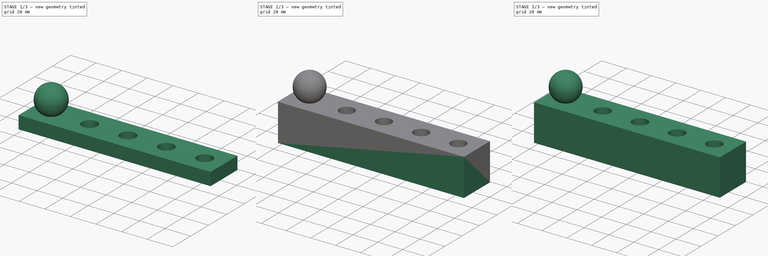
[diagram: build sequence overview — one tinted view per stage of 3, left to right]
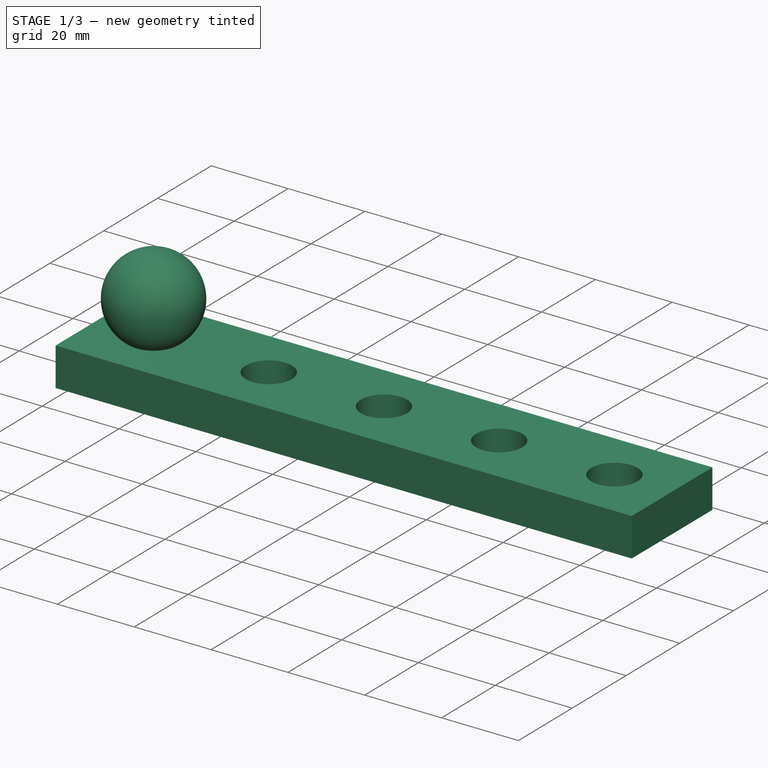
[diagram: stage 1 of 3 — iso view after this stage's code; geometry added in this stage tinted green]
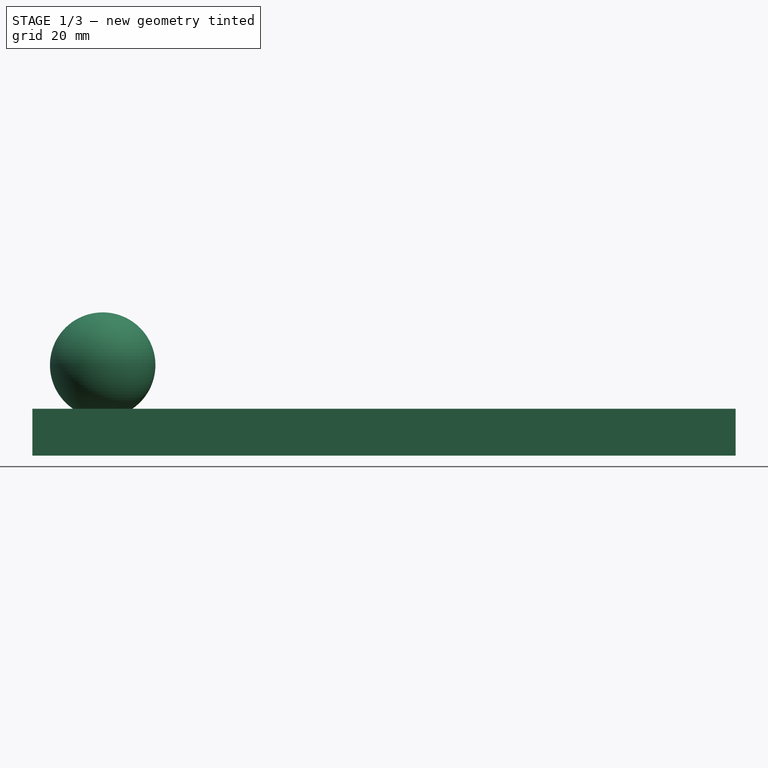
[diagram: stage 1 of 3 — front view after this stage's code; geometry added in this stage tinted green]
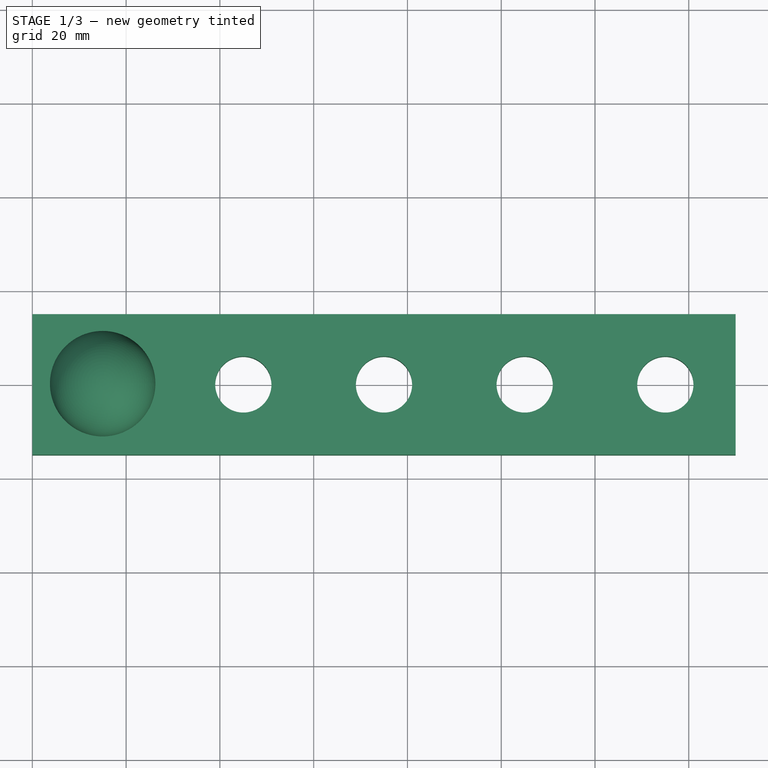
[diagram: stage 1 of 3 — top view after this stage's code; geometry added in this stage tinted green]
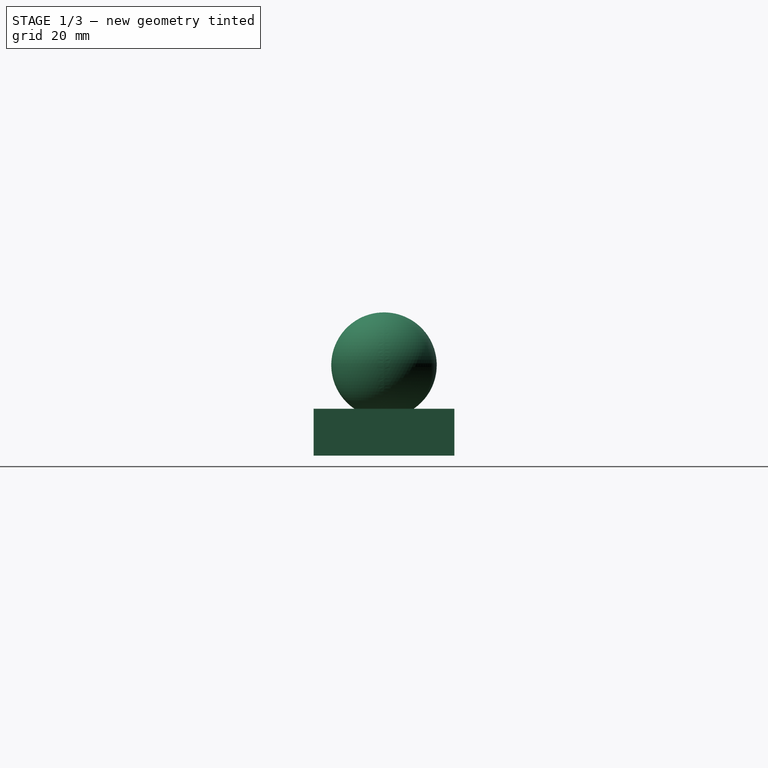
[diagram: stage 1 of 3 — right view after this stage's code; geometry added in this stage tinted green]
FCSTD DOCUMENT  (FreeCAD 2023.131R26244 +5365 (Git))
Label: supportCerise2023
License: Creative Commons Attribution-NoDerivatives
LicenseURL: http://creativecommons.org/licenses/by-nd/4.0/
objects: App::Link×10, App::Part×2, Sketcher::SketchExport×2, PartDesign::Pad×2, PartDesign::Chamfer×2, Part::Sphere×1, PartDesign::Body×1, Sketcher::SketchObject×1
note: 18 computed .brp shape members not serialized (recipe doc carries the construction recipe); baked Part::Feature solids carry a one-line shape summary decoded from their .brp

FEATURE [App::Link] Link  label="DemiSupport02"
  AutoLinkLabel = true
  AutoPlacement = true
  LinkPlacement = pos=(150,-1.78814e-05,0) rot=(0,0,1;0rad)
  LinkedObject = -> Body
  Placement = pos=(150,-1.78814e-05,0) rot=(0,0,1;0rad)
  ShowElement = false
  SyncGroupVisibility = false
  TreeRank = 22
  _LinkVersion = 1
FEATURE [Part::Sphere] Sphere  label="Cerise"
  Angle1 = -90
  Angle2 = 90
  Angle3 = 360
  AttacherType = Attacher::AttachEngine3D
  InvalidShape = false
  Placement = pos=(15,0,19.3) rot=(0,0,1;0rad)
  Radius = 11.25
  TreeRank = 33
  ValidateShape = true
FEATURE [App::Link] Link001  label="Link001(Cerise)"
  AutoLinkLabel = true
  AutoPlacement = true
  LinkPlacement = pos=(45,0,19.3) rot=(0,0,1;0rad)
  LinkedObject = -> Sphere
  Placement = pos=(45,0,19.3) rot=(0,0,1;0rad)
  ShowElement = false
  SyncGroupVisibility = false
  TreeRank = 34
  _LinkVersion = 1
FEATURE [App::Link] Link002  label="Link002(Cerise)"
  AutoLinkLabel = true
  AutoPlacement = true
  LinkPlacement = pos=(75,0,19.3) rot=(0,0,1;0rad)
  LinkedObject = -> Sphere
  Placement = pos=(75,0,19.3) rot=(0,0,1;0rad)
  ShowElement = false
  SyncGroupVisibility = false
  TreeRank = 35
  _LinkVersion = 1
FEATURE [App::Link] Link003  label="Link003(Cerise)"
  AutoLinkLabel = true
  AutoPlacement = true
  LinkPlacement = pos=(105,0,19.3) rot=(0,0,1;0rad)
  LinkedObject = -> Sphere
  Placement = pos=(105,0,19.3) rot=(0,0,1;0rad)
  ShowElement = false
  SyncGroupVisibility = false
  TreeRank = 36
  _LinkVersion = 1
FEATURE [App::Link] Link004  label="Link004(Cerise)"
  AutoLinkLabel = true
  AutoPlacement = true
  LinkPlacement = pos=(135,0,19.3) rot=(0,0,1;0rad)
  LinkedObject = -> Sphere
  Placement = pos=(135,0,19.3) rot=(0,0,1;0rad)
  ShowElement = false
  SyncGroupVisibility = false
  TreeRank = 37
  _LinkVersion = 1
FEATURE [App::Link] Link005  label="Link005(Cerise)"
  AutoLinkLabel = true
  AutoPlacement = true
  LinkPlacement = pos=(165,0,19.3) rot=(0,0,1;0rad)
  LinkedObject = -> Sphere
  Placement = pos=(165,0,19.3) rot=(0,0,1;0rad)
  ShowElement = false
  SyncGroupVisibility = false
  TreeRank = 38
  _LinkVersion = 1
FEATURE [App::Link] Link006  label="Link006(Cerise)"
  AutoLinkLabel = true
  AutoPlacement = true
  LinkPlacement = pos=(195,0,19.3) rot=(0,0,1;0rad)
  LinkedObject = -> Sphere
  Placement = pos=(195,0,19.3) rot=(0,0,1;0rad)
  ShowElement = false
  SyncGroupVisibility = false
  TreeRank = 39
  _LinkVersion = 1
FEATURE [App::Link] Link007  label="Link007(Cerise)"
  AutoLinkLabel = true
  AutoPlacement = true
  LinkPlacement = pos=(225,0,19.3) rot=(0,0,1;0rad)
  LinkedObject = -> Sphere
  Placement = pos=(225,0,19.3) rot=(0,0,1;0rad)
  ShowElement = false
  SyncGroupVisibility = false
  TreeRank = 40
  _LinkVersion = 1
FEATURE [App::Link] Link008  label="Link008(Cerise)"
  AutoLinkLabel = true
  AutoPlacement = true
  LinkPlacement = pos=(255,0,19.3) rot=(0,0,1;0rad)
  LinkedObject = -> Sphere
  Placement = pos=(255,0,19.3) rot=(0,0,1;0rad)
  ShowElement = false
  SyncGroupVisibility = false
  TreeRank = 41
  _LinkVersion = 1
FEATURE [App::Link] Link009  label="Link009(Cerise)"
  AutoLinkLabel = true
  AutoPlacement = true
  LinkPlacement = pos=(285,0,19.3) rot=(0,0,1;0rad)
  LinkedObject = -> Sphere
  Placement = pos=(285,0,19.3) rot=(0,0,1;0rad)
  ShowElement = false
  SyncGroupVisibility = false
  TreeRank = 42
  _LinkVersion = 1
FEATURE [App::Part] Part001  label="Cerises"
  ClaimAllChildren = false
  ExportMode = 1
  Group = -> [Sphere,Link001,Link002,Link003,Link004,Link005,Link006,Link007,Link008,Link009]
  Origin = -> Origin002
  TreeRank = 45
  _ExportChildren = -> [Sphere,Link001,Link002,Link003,Link004,Link005,Link006,Link007,Link008,Link009]
  _GroupVersion = 1
FEATURE [PartDesign::Body] Body  label="DemiSupport01"
  AutoGroupSolids = false
  ClaimAllChildren = false
  ExportMode = 0
  Group = -> [Sketch,Export001,Pad,Export002,Pad001,Chamfer,Chamfer001]
  InvalidShape = false
  Origin = -> Origin
  SingleSolid = true
  Tip = -> Chamfer001
  TreeRank = 10
  ValidateShape = true
  _ExportChildren = -> [Sketch,Pad,Pad001,Chamfer,Chamfer001]
  _GroupVersion = 1
FEATURE [Sketcher::SketchObject] Sketch
  ArcFitTolerance = 1e-06
  AttachmentSupport = -> [XY_Plane]
  Exports = -> [Export001,Export002]
  ExternalBSplineMaxDegree = 0
  ExternalBSplineTolerance = 0
  FullyConstrained = true
  InternalTolerance = 1e-06
  InvalidShape = false
  MakeInternals = false
  MapMode = 5
  Support = -> [XY_Plane]
  TreeRank = 11
  ValidateShape = true
  sketch-geometry (15):
    g0: LineSegment StartX=1.87809e-11 StartY=15 StartZ=0 EndX=150 EndY=15 EndZ=0
    g1: LineSegment StartX=150 StartY=15 StartZ=0 EndX=150 EndY=-15 EndZ=0
    g2: LineSegment StartX=150 StartY=-15 StartZ=0 EndX=1.87867e-11 EndY=-15 EndZ=0
    g3: LineSegment StartX=1.87809e-11 StartY=-15 StartZ=0 EndX=1.87809e-11 EndY=15 EndZ=0
    g4: Circle CenterX=15 CenterY=0 CenterZ=0 NormalX=0 NormalY=0 NormalZ=1 AngleXU=0 Radius=6
    g5: Circle CenterX=45 CenterY=0 CenterZ=0 NormalX=0 NormalY=0 NormalZ=1 AngleXU=0 Radius=6
    g6: Circle CenterX=75 CenterY=-2.3e-15 CenterZ=0 NormalX=0 NormalY=0 NormalZ=1 AngleXU=0 Radius=6
    g7: Circle CenterX=105 CenterY=5.345e-13 CenterZ=0 NormalX=0 NormalY=0 NormalZ=1 AngleXU=0 Radius=6
    g8: Circle CenterX=135 CenterY=5.07994e-11 CenterZ=0 NormalX=0 NormalY=0 NormalZ=1 AngleXU=0 Radius=6
    g9: LineSegment [constr] StartX=-2.59924e-11 StartY=0 StartZ=0 EndX=15 EndY=0 EndZ=0
    g10: LineSegment [constr] StartX=15 StartY=0 StartZ=0 EndX=45 EndY=0 EndZ=0
    g11: LineSegment [constr] StartX=45 StartY=0 StartZ=0 EndX=75 EndY=-2.3e-15 EndZ=0
    g12: LineSegment [constr] StartX=75 StartY=-2.3e-15 StartZ=0 EndX=105 EndY=5.345e-13 EndZ=0
    g13: LineSegment [constr] StartX=105 StartY=5.345e-13 StartZ=0 EndX=135 EndY=5.07994e-11 EndZ=0
    g14: LineSegment [constr] StartX=135 StartY=5.07994e-11 StartZ=0 EndX=150 EndY=5.07994e-11 EndZ=0
  constraints (36):
    c: Coincident(g0,g1)
    c: Coincident(g1,g2)
    c: Coincident(g2,g3)
    c: Coincident(g3,g0)
    c: Horizontal(g0)
    c: Horizontal(g2)
    c: Vertical(g3)
    c: PointOnObject(g0,g-2)
    c: Symmetric(g0,g1,g-1)
    c: DistanceY(g1,g1) = 30
    c: DistanceX(g0,g0) = 150
    c: PointOnObject(g4,g-1)
    c: PointOnObject(g5,g-1)
    c: PointOnObject(g6,g-1)
    c: PointOnObject(g7,g-1)
    c: PointOnObject(g8,g-1)
    c: Equal(g4, g5-g8) x4
    c: Diameter(g4) = 12
    c: Coincident(g9,g-1)
    c: Coincident(g9,g4)
    c: Coincident(g10,g4)
    c: Coincident(g10,g5)
    c: Coincident(g11,g5)
    c: Coincident(g11,g6)
    c: Coincident(g12,g6)
    c: Coincident(g12,g7)
    c: Coincident(g13,g7)
    c: Coincident(g13,g8)
    c: Coincident(g14,g8)
    c: Horizontal(g14)
    c: Equal(g9,g14)
    c: PointOnObject(g14,g1)
    c: Equal(g10,g11)
    c: Equal(g11,g12)
    c: Equal(g12,g13)
    c: DistanceX(g9,g9) = 15
FEATURE [Sketcher::SketchExport] Export001
  Base = -> Sketch
  BaseRefs = -> Sketch [edge5,edge6,edge7,edge8,edge9,edge1,edge4,edge3,edge2]
  InvalidShape = false
  Refs = ;g5.edge5 | ;g6.edge6 | ;g7.edge7 | ;g8.edge8 | ;g9.edge9 | ;g1.edge1 | ;g4.edge4 | ;g3.edge3 | ;g2.edge2
  SyncPlacement = true
  TreeRank = 13
  ValidateShape = true
FEATURE [PartDesign::Pad] Pad
  AddSubType = 0
  AlongSketchNormal = false
  AutoTaperInnerAngle = false
  CheckUpToFaceLimits = true
  ClaimChildren = false
  Direction = (0,0,1)
  Fit = 0
  FitJoin = 0
  InnerFit = 0
  InnerFitJoin = 0
  InvalidShape = false
  Length = 10
  Length2 = 100
  Linearize = true
  NewSolid = false
  Profile = -> Export001
  Refine = true
  Suppress = false
  TaperInnerAngle = 0
  TaperInnerAngleRev = 0
  TreeRank = 14
  Type = 0
  ValidateShape = true
  _ProfileBasedVersion = 1
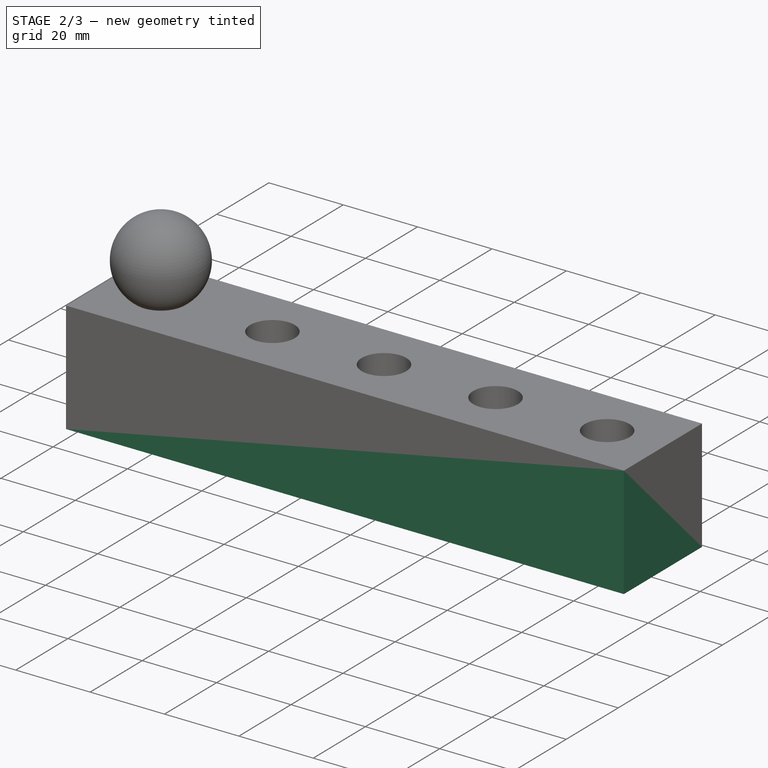
[diagram: stage 2 of 3 — iso view after this stage's code; geometry added in this stage tinted green]
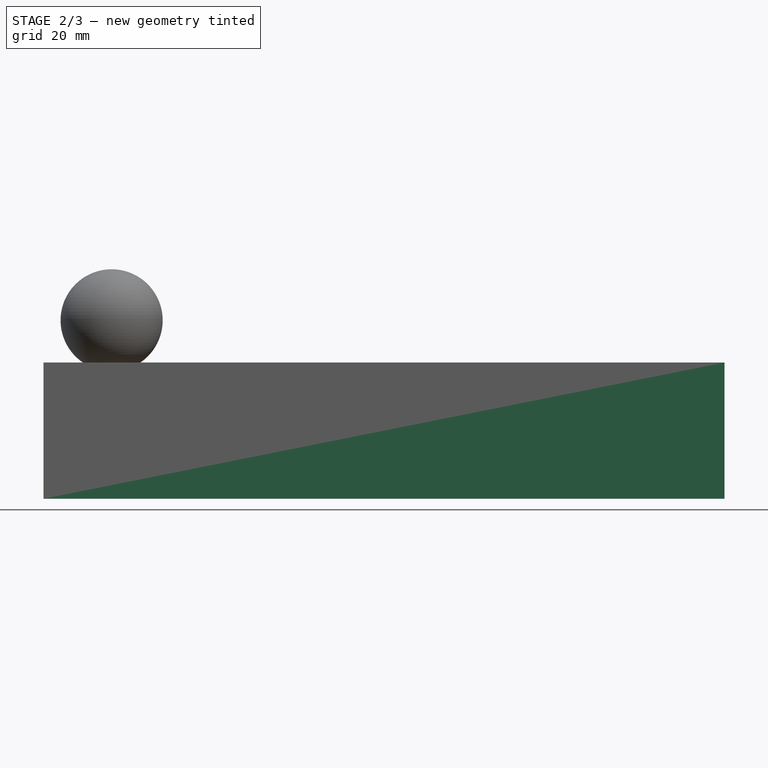
[diagram: stage 2 of 3 — front view after this stage's code; geometry added in this stage tinted green]
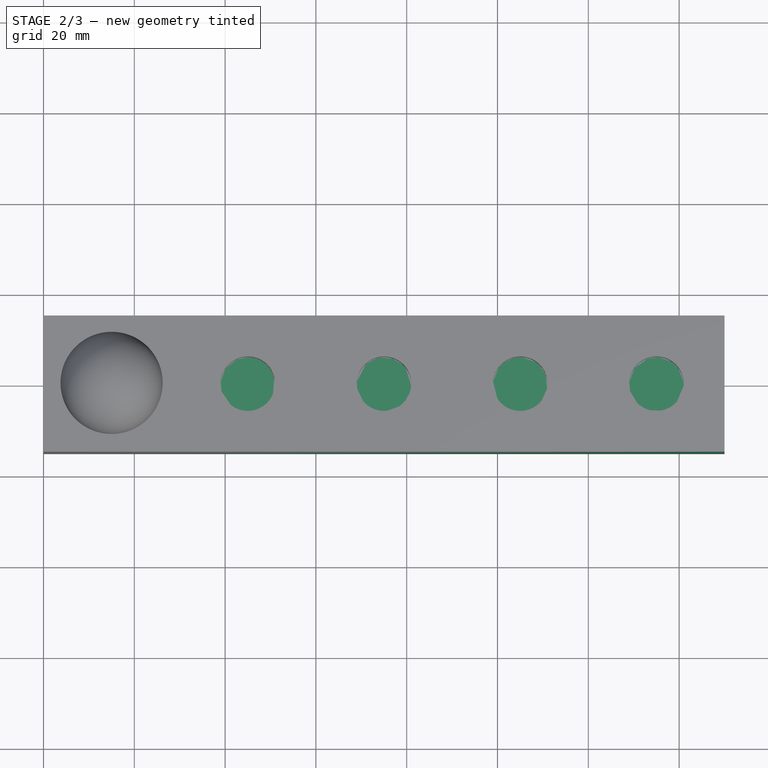
[diagram: stage 2 of 3 — top view after this stage's code; geometry added in this stage tinted green]
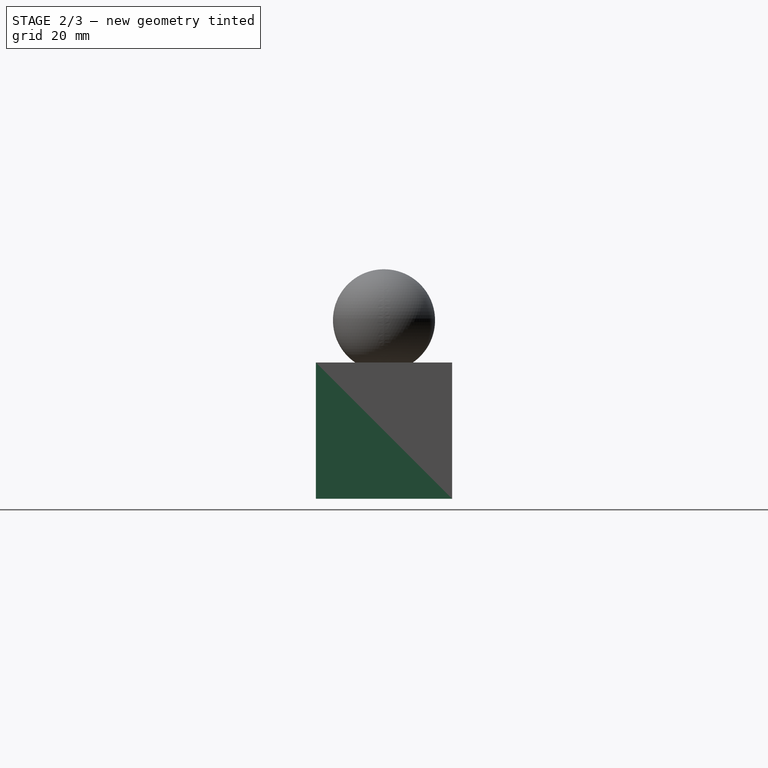
[diagram: stage 2 of 3 — right view after this stage's code; geometry added in this stage tinted green]
FEATURE [Sketcher::SketchExport] Export002
  Base = -> Sketch
  BaseRefs = -> Sketch [edge1,edge4,edge3,edge2]
  InvalidShape = false
  Refs = ;g1.edge1 | ;g4.edge4 | ;g3.edge3 | ;g2.edge2
  SyncPlacement = true
  TreeRank = 15
  ValidateShape = true
FEATURE [PartDesign::Pad] Pad001
  AddSubType = 0
  AlongSketchNormal = false
  AutoTaperInnerAngle = false
  BaseFeature = -> Pad
  CheckUpToFaceLimits = true
  ClaimChildren = false
  Direction = (0,0,1)
  Fit = 0
  FitJoin = 0
  InnerFit = 0
  InnerFitJoin = 0
  InvalidShape = false
  Length = 20
  Length2 = 100
  Linearize = true
  NewSolid = false
  Profile = -> Export002
  Refine = true
  Reversed = true
  Suppress = false
  TaperInnerAngle = 0
  TaperInnerAngleRev = 0
  TreeRank = 16
  Type = 0
  ValidateShape = true
  _ProfileBasedVersion = 1
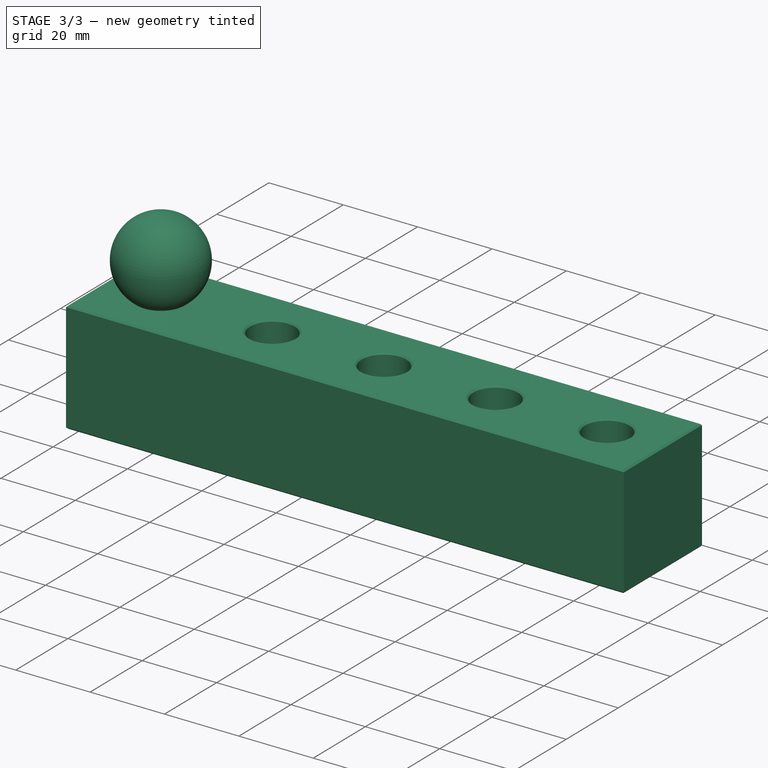
[diagram: stage 3 of 3 — iso view after this stage's code; geometry added in this stage tinted green]
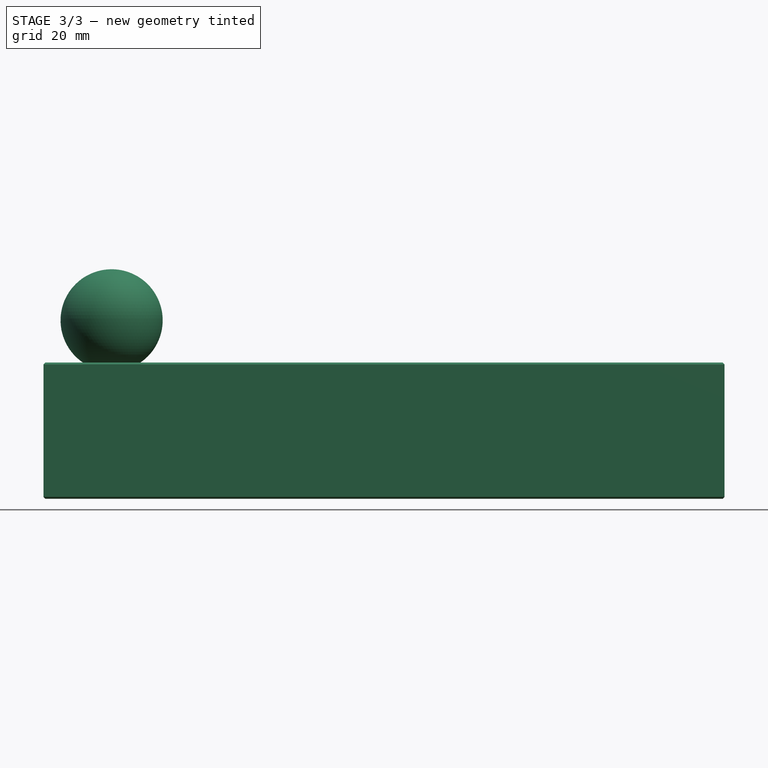
[diagram: stage 3 of 3 — front view after this stage's code; geometry added in this stage tinted green]
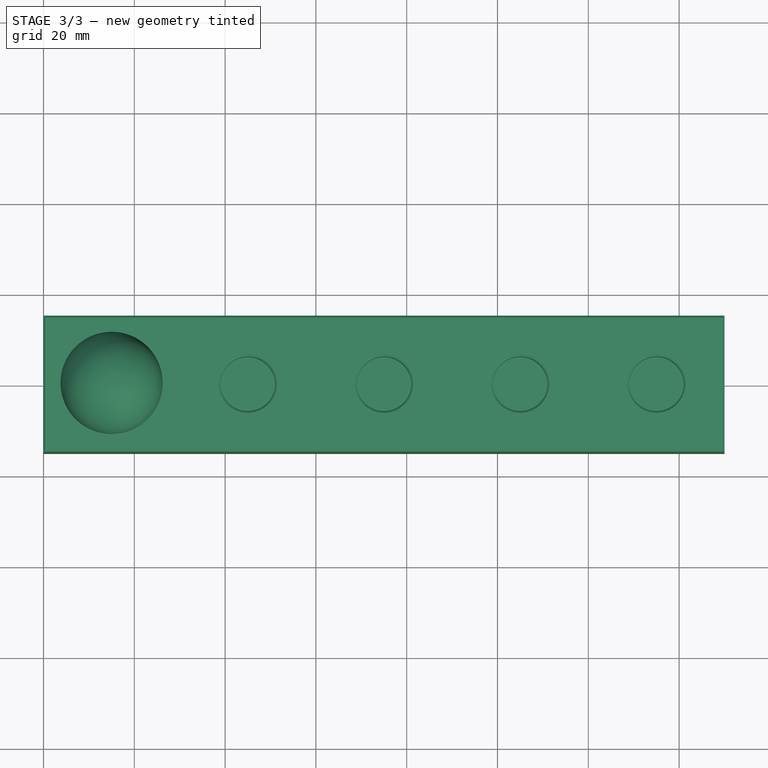
[diagram: stage 3 of 3 — top view after this stage's code; geometry added in this stage tinted green]
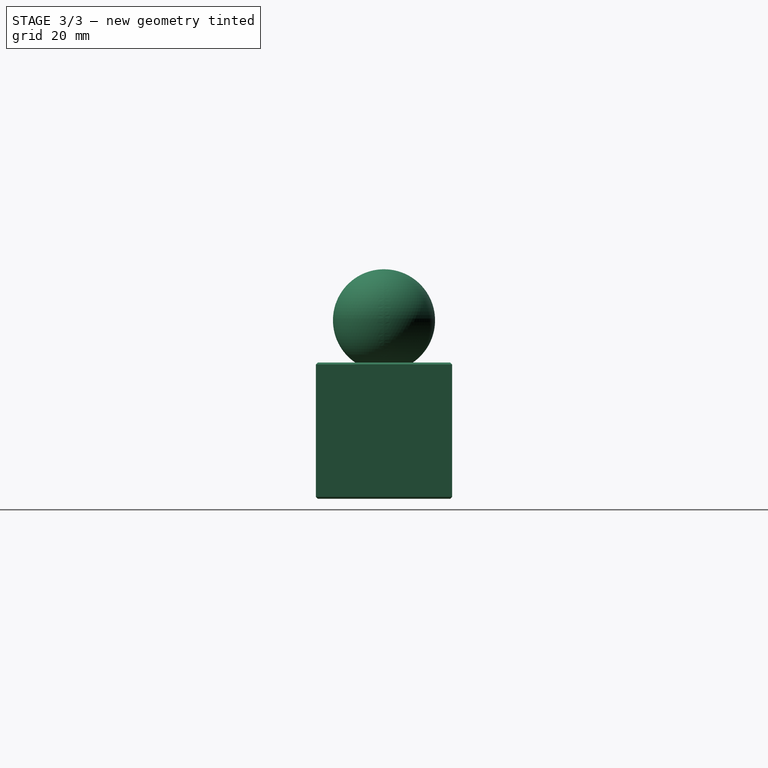
[diagram: stage 3 of 3 — right view after this stage's code; geometry added in this stage tinted green]
FEATURE [PartDesign::Chamfer] Chamfer
  AddSubType = 0
  Angle = 45
  Base = -> Pad001 [Face13]
  BaseFeature = -> Pad001
  ChamferType = 0
  FlipDirection = false
  InvalidShape = false
  NewSolid = false
  Refine = true
  Size = 0.4
  Size2 = 1
  SupportTransform = false
  Suppress = false
  TreeRank = 17
  ValidateShape = true
FEATURE [PartDesign::Chamfer] Chamfer001
  AddSubType = 0
  Angle = 45
  Base = -> Chamfer [Face4]
  BaseFeature = -> Chamfer
  ChamferType = 0
  FlipDirection = false
  InvalidShape = false
  NewSolid = false
  Refine = true
  Size = 0.4
  Size2 = 1
  SupportTransform = false
  Suppress = false
  TreeRank = 18
  ValidateShape = true
FEATURE [App::Part] Part  label="SupportCerise"
  ClaimAllChildren = false
  ExportMode = 1
  Group = -> [Body,Link,Part001]
  Origin = -> Origin001
  TreeRank = 21
  _ExportChildren = -> [Body,Link,Part001]
  _GroupVersion = 1
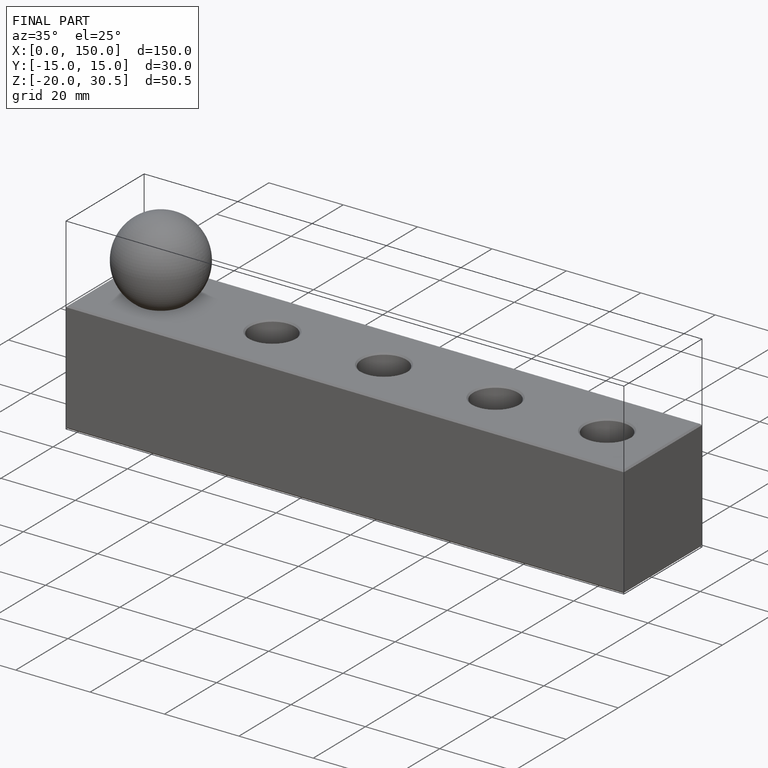
[diagram: finished part — iso view with bounding-box wireframe]
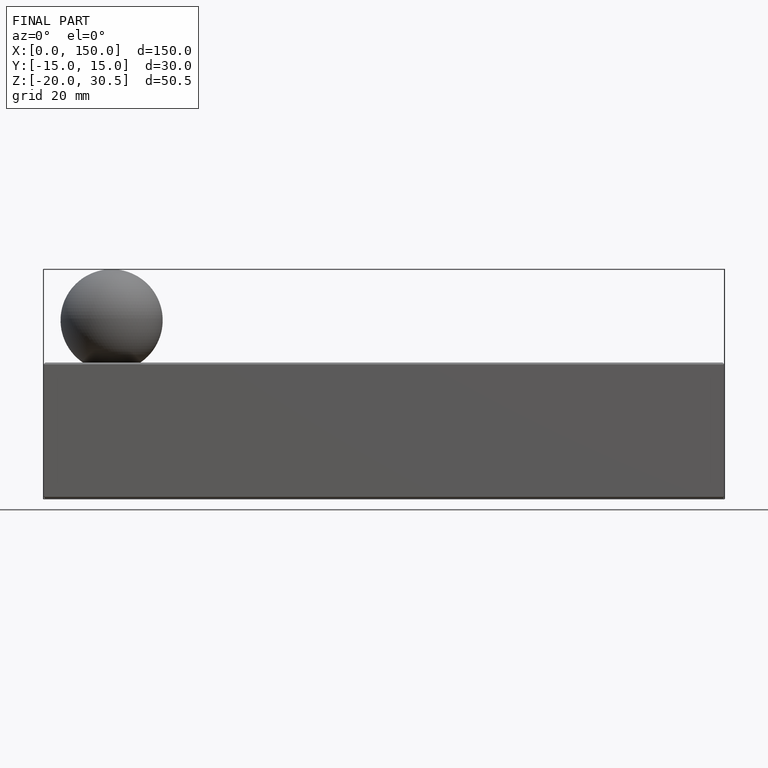
[diagram: finished part — front view with bounding-box wireframe]
